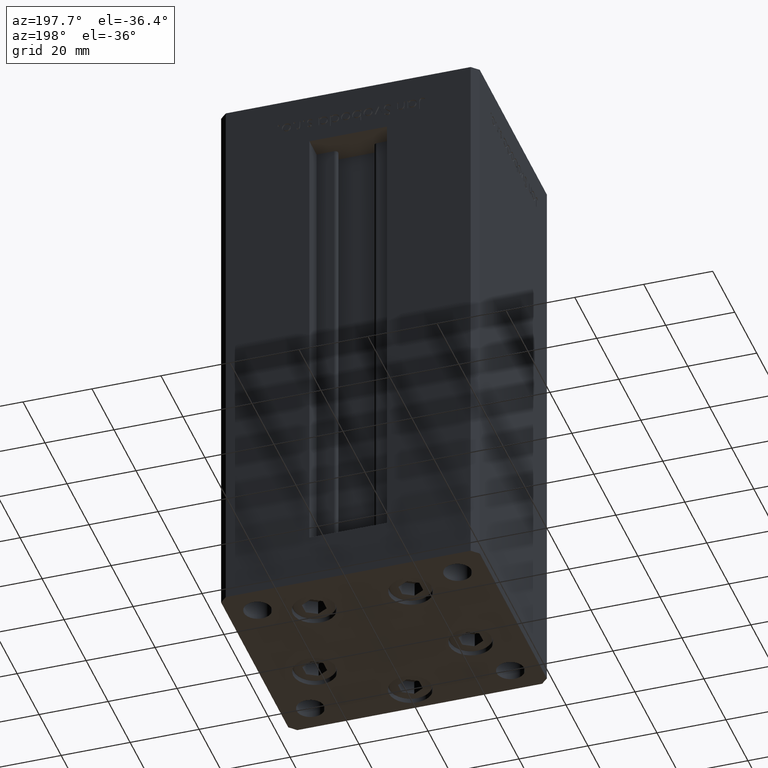
[diagram: clean part render]
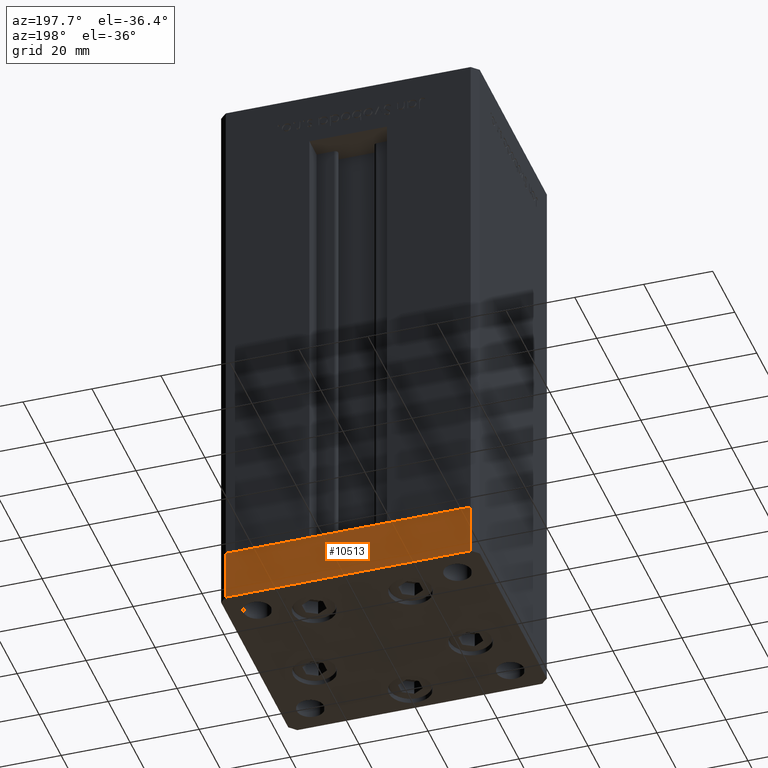
[diagram: same view with one face highlighted and labeled with its STEP entity id]
A machine part, auxiliary view. The second image highlights one B-rep face of the part: STEP entity #10513.
In plain terms, the highlighted planar face has unit normal (0, 1, 0).
Its self-contained STEP definition (entity closure, byte-faithful):
#2190 = DIRECTION ( 'NONE',  ( -1.000000000000000000, -1.954618001100629052E-16, 0.000000000000000000 ) ) ;
#2888 = VECTOR ( 'NONE', #7536, 1000.000000000000000 ) ;
#3397 = EDGE_LOOP ( 'NONE', ( #39352, #3984, #32202, #6170 ) ) ;
#3984 = ORIENTED_EDGE ( 'NONE', *, *, #43243, .F. ) ;
#4470 = CARTESIAN_POINT ( 'NONE',  ( 35.49999999999992184, 32.50000000000000711, -15.00000000000000000 ) ) ;
#6170 = ORIENTED_EDGE ( 'NONE', *, *, #20184, .T. ) ;
#6883 = EDGE_CURVE ( 'NONE', #41835, #46302, #50945, .T. ) ;
#7263 = CARTESIAN_POINT ( 'NONE',  ( -35.50000000000002842, 32.49999999999999289, -15.00000000000000000 ) ) ;
#7536 = DIRECTION ( 'NONE',  ( -1.000000000000000000, -1.954618001100629052E-16, 0.000000000000000000 ) ) ;
#10248 = VERTEX_POINT ( 'NONE', #50280 ) ;
#10513 = ADVANCED_FACE ( 'NONE', ( #18823 ), #34890, .T. ) ;
#12389 = CARTESIAN_POINT ( 'NONE',  ( -35.50000000000002842, 32.49999999999999289, -15.00000000000000000 ) ) ;
#14441 = DIRECTION ( 'NONE',  ( 0.000000000000000000, 0.000000000000000000, 1.000000000000000000 ) ) ;
#14866 = CARTESIAN_POINT ( 'NONE',  ( 35.49999999999992184, 32.50000000000000711, -15.00000000000000000 ) ) ;
#17567 = LINE ( 'NONE', #29166, #34282 ) ;
#18823 = FACE_OUTER_BOUND ( 'NONE', #3397, .T. ) ;
#20184 = EDGE_CURVE ( 'NONE', #46302, #10248, #43425, .T. ) ;
#20251 = VECTOR ( 'NONE', #47519, 1000.000000000000000 ) ;
#28906 = DIRECTION ( 'NONE',  ( 0.000000000000000000, 0.000000000000000000, 1.000000000000000000 ) ) ;
#29166 = CARTESIAN_POINT ( 'NONE',  ( 35.49999999999992184, 32.50000000000000711, -15.00000000000000000 ) ) ;
#32202 = ORIENTED_EDGE ( 'NONE', *, *, #6883, .T. ) ;
#34282 = VECTOR ( 'NONE', #28906, 1000.000000000000000 ) ;
#34890 = PLANE ( 'NONE',  #38876 ) ;
#35246 = LINE ( 'NONE', #36030, #2888 ) ;
#36030 = CARTESIAN_POINT ( 'NONE',  ( 35.49999999999992184, 32.50000000000000711, 0.000000000000000000 ) ) ;
#36151 = EDGE_CURVE ( 'NONE', #45028, #10248, #35246, .T. ) ;
#38341 = DIRECTION ( 'NONE',  ( -1.954618001100629052E-16, 1.000000000000000000, 0.000000000000000000 ) ) ;
#38876 = AXIS2_PLACEMENT_3D ( 'NONE', #14866, #38341, #2190 ) ;
#39352 = ORIENTED_EDGE ( 'NONE', *, *, #36151, .F. ) ;
#39888 = CARTESIAN_POINT ( 'NONE',  ( 35.49999999999992184, 32.50000000000000711, 0.000000000000000000 ) ) ;
#40099 = VECTOR ( 'NONE', #14441, 1000.000000000000000 ) ;
#41835 = VERTEX_POINT ( 'NONE', #4470 ) ;
#43243 = EDGE_CURVE ( 'NONE', #41835, #45028, #17567, .T. ) ;
#43425 = LINE ( 'NONE', #7263, #40099 ) ;
#45028 = VERTEX_POINT ( 'NONE', #39888 ) ;
#46302 = VERTEX_POINT ( 'NONE', #12389 ) ;
#47266 = CARTESIAN_POINT ( 'NONE',  ( 35.49999999999992184, 32.50000000000000711, -15.00000000000000000 ) ) ;
#47519 = DIRECTION ( 'NONE',  ( -1.000000000000000000, -1.954618001100629052E-16, 0.000000000000000000 ) ) ;
#50280 = CARTESIAN_POINT ( 'NONE',  ( -35.50000000000002842, 32.49999999999999289, 0.000000000000000000 ) ) ;
#50945 = LINE ( 'NONE', #47266, #20251 ) ;